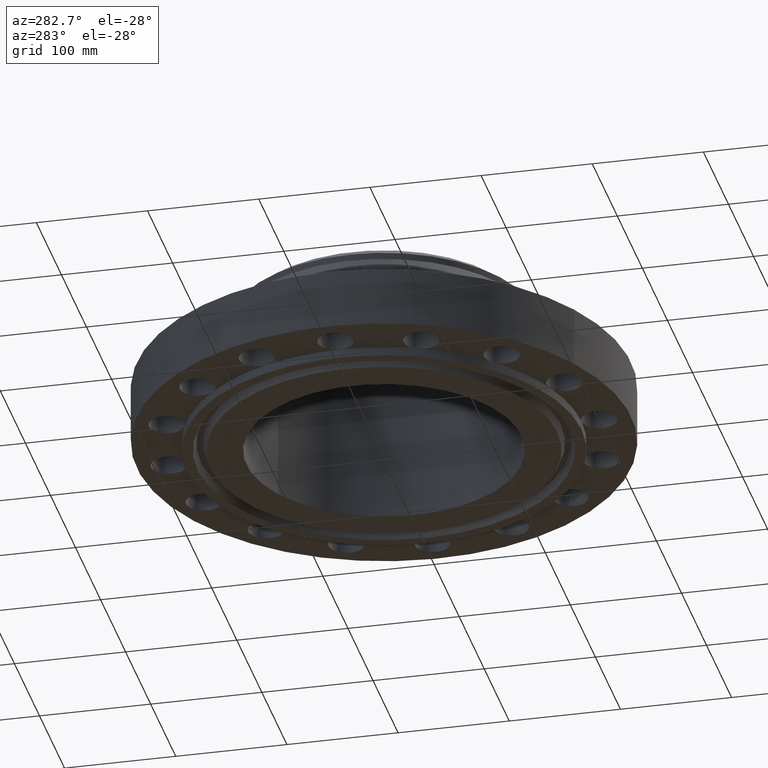
[diagram: clean part render]
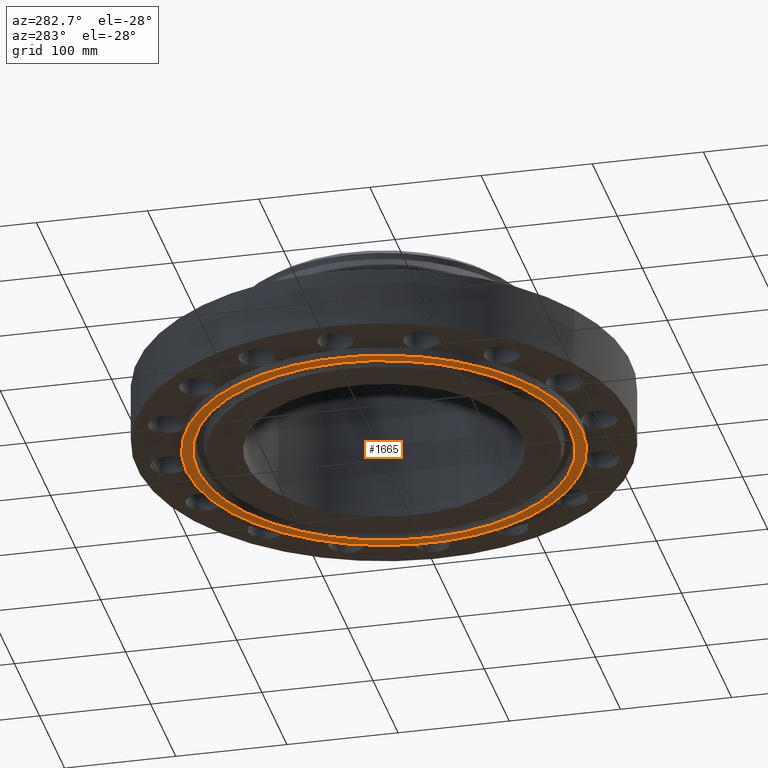
[diagram: same view with one face highlighted and labeled with its STEP entity id]
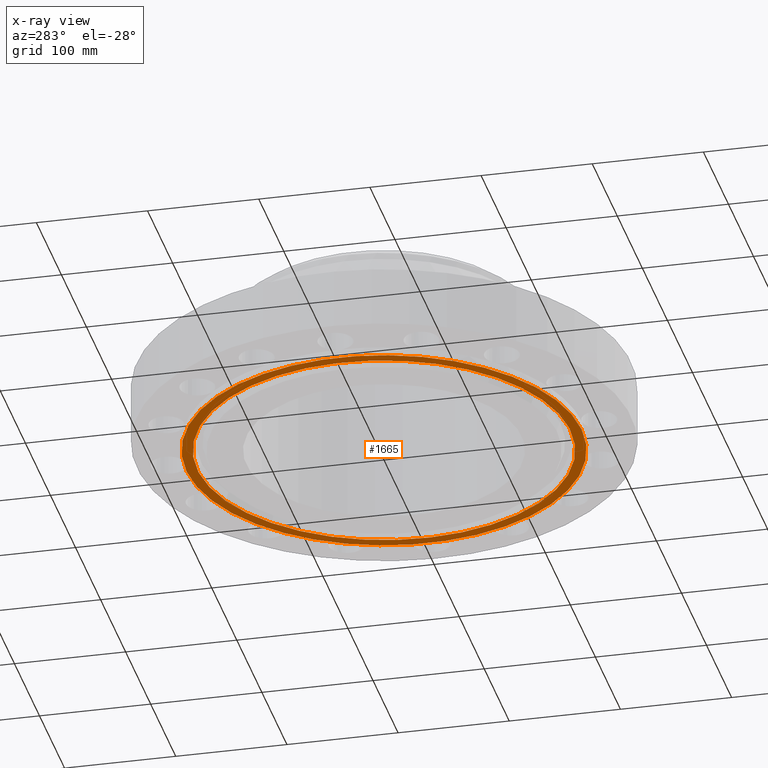
[diagram: x-ray of the same camera — body ghosted, the highlighted face saturated]
A machine part, auxiliary view. The second image highlights one B-rep face of the part: STEP entity #1665.
The next image is the same camera in x-ray: the body ghosted, the highlighted face saturated — about 0% of this face is hidden behind the body in this view.
In plain terms, the highlighted planar face has unit normal (0, 0, -1).
Its self-contained STEP definition (entity closure, byte-faithful):
#439=AXIS2_PLACEMENT_3D('Circle Axis2P3D',#437,#438,$) ;
#536=AXIS2_PLACEMENT_3D('Circle Axis2P3D',#534,#535,$) ;
#1641=AXIS2_PLACEMENT_3D('Plane Axis2P3D',#1638,#1639,#1640) ;
#1649=AXIS2_PLACEMENT_3D('Circle Axis2P3D',#1647,#1648,$) ;
#1658=AXIS2_PLACEMENT_3D('Circle Axis2P3D',#1656,#1657,$) ;
#437=CARTESIAN_POINT('Axis2P3D Location',(0.,0.,-0.313000000001)) ;
#441=CARTESIAN_POINT('Vertex',(-3.35597877024,-6.14307793326,-0.313000000001)) ;
#443=CARTESIAN_POINT('Vertex',(3.35597877024,6.14307793326,-0.313000000001)) ;
#534=CARTESIAN_POINT('Axis2P3D Location',(0.,0.,-0.313000000001)) ;
#1638=CARTESIAN_POINT('Axis2P3D Location',(0.,4.87500000002,-0.313000000001)) ;
#1647=CARTESIAN_POINT('Axis2P3D Location',(-1.1189649382E-015,-2.23792987641E-015,-0.313000000001)) ;
#1651=CARTESIAN_POINT('Vertex',(3.16876309742,-5.80038194284,-0.313000000001)) ;
#1653=CARTESIAN_POINT('Vertex',(-3.16876309742,5.80038194284,-0.313000000001)) ;
#1656=CARTESIAN_POINT('Axis2P3D Location',(0.,-1.1189649382E-015,-0.313000000001)) ;
#438=DIRECTION('Axis2P3D Direction',(0.,0.,-0.0393700787402)) ;
#535=DIRECTION('Axis2P3D Direction',(0.,0.,-0.0393700787402)) ;
#1639=DIRECTION('Axis2P3D Direction',(0.,0.,-0.0393700787402)) ;
#1640=DIRECTION('Axis2P3D XDirection',(0.0393700787402,0.,0.)) ;
#1648=DIRECTION('Axis2P3D Direction',(0.,0.,-0.0393700787402)) ;
#1657=DIRECTION('Axis2P3D Direction',(0.,0.,-0.0393700787402)) ;
#1644=ORIENTED_EDGE('',*,*,#445,.T.) ;
#1645=ORIENTED_EDGE('',*,*,#538,.T.) ;
#1662=ORIENTED_EDGE('',*,*,#1655,.F.) ;
#1663=ORIENTED_EDGE('',*,*,#1660,.F.) ;
#1664=FACE_BOUND('',#1661,.T.) ;
#1665=ADVANCED_FACE('PartBody',(#1646,#1664),#1642,.T.) ;
#440=CIRCLE('generated circle',#439,7.00000000003) ;
#537=CIRCLE('generated circle',#536,7.00000000003) ;
#1650=CIRCLE('generated circle',#1649,6.60950000003) ;
#1659=CIRCLE('generated circle',#1658,6.60950000003) ;
#445=EDGE_CURVE('',#442,#444,#440,.T.) ;
#538=EDGE_CURVE('',#444,#442,#537,.T.) ;
#1655=EDGE_CURVE('',#1652,#1654,#1650,.T.) ;
#1660=EDGE_CURVE('',#1654,#1652,#1659,.T.) ;
#1643=EDGE_LOOP('',(#1644,#1645)) ;
#1661=EDGE_LOOP('',(#1662,#1663)) ;
#1646=FACE_OUTER_BOUND('',#1643,.T.) ;
#1642=PLANE('',#1641) ;
#442=VERTEX_POINT('',#441) ;
#444=VERTEX_POINT('',#443) ;
#1652=VERTEX_POINT('',#1651) ;
#1654=VERTEX_POINT('',#1653) ;